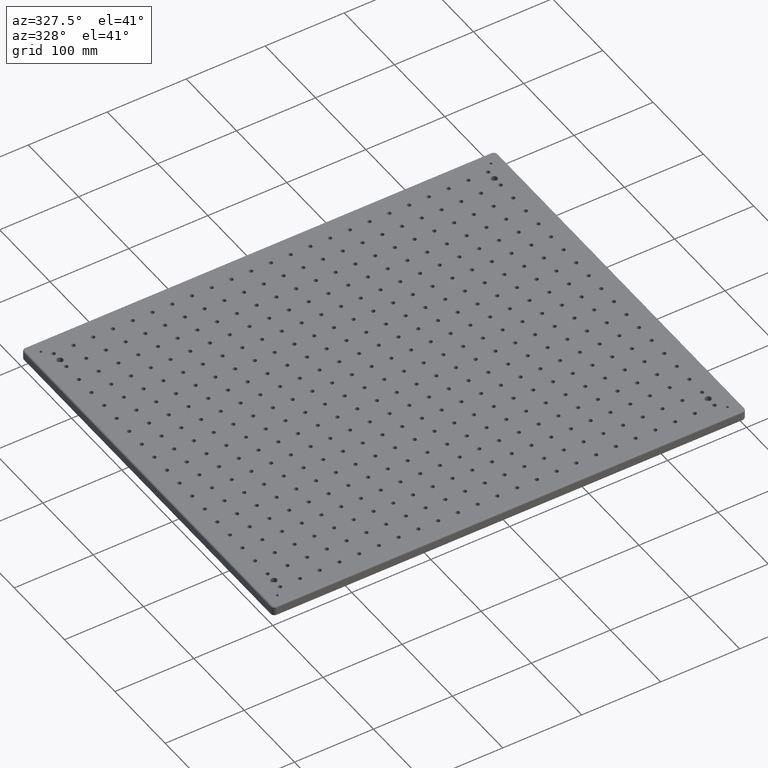
[diagram: clean part render]
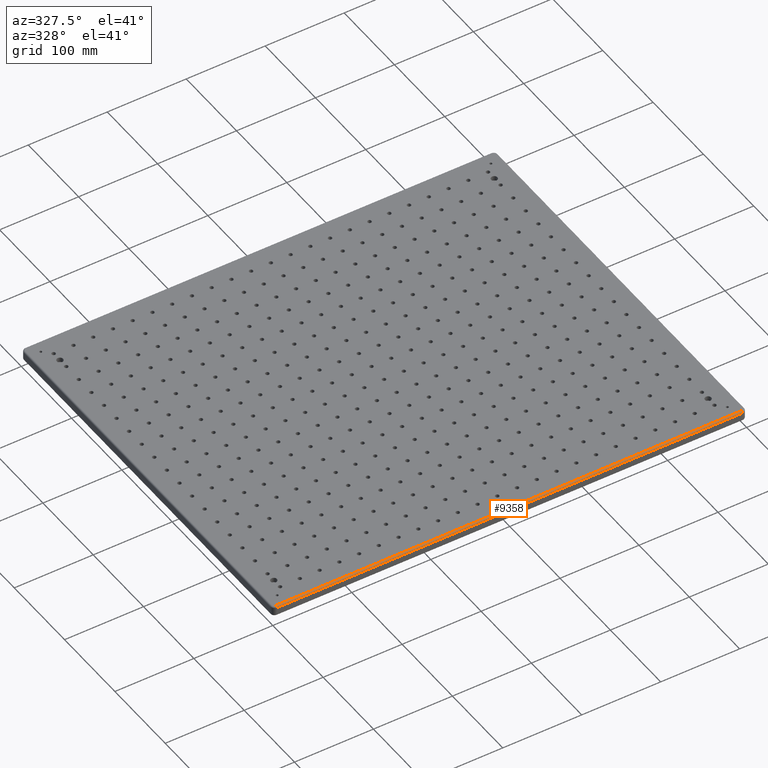
[diagram: same view with one face highlighted and labeled with its STEP entity id]
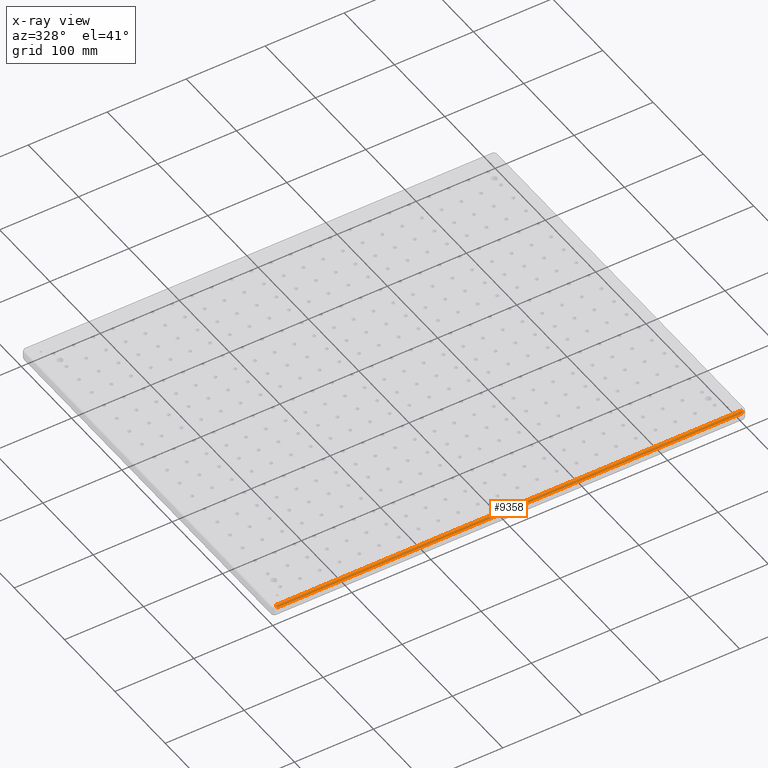
[diagram: x-ray of the same camera — body ghosted, the highlighted face saturated]
A machine part, auxiliary view. The second image highlights one B-rep face of the part: STEP entity #9358.
The next image is the same camera in x-ray: the body ghosted, the highlighted face saturated — about 0% of this face is hidden behind the body in this view.
In plain terms, the highlighted cylindrical surface (edge-blend (fillet) strip) has radius 2 mm, axis along (-1, 0, 0).
Its self-contained STEP definition (entity closure, byte-faithful):
#647 = DIRECTION ( 'NONE',  ( -1.000000000000000000, 0.0000000000000000000, 0.0000000000000000000 ) ) ;
#1611 = DIRECTION ( 'NONE',  ( -1.000000000000000000, -0.0000000000000000000, 0.0000000000000000000 ) ) ;
#3282 = DIRECTION ( 'NONE',  ( 0.0000000000000000000, 0.0000000000000000000, 1.000000000000000000 ) ) ;
#3392 = EDGE_CURVE ( 'NONE', #16228, #33607, #11680, .T. ) ;
#4882 = VERTEX_POINT ( 'NONE', #8307 ) ;
#5814 = LINE ( 'NONE', #30786, #15667 ) ;
#5933 = DIRECTION ( 'NONE',  ( 0.0000000000000000000, 0.0000000000000000000, -1.000000000000000000 ) ) ;
#7308 = CIRCLE ( 'NONE', #21788, 2.000000000000000000 ) ;
#7586 = VERTEX_POINT ( 'NONE', #7614 ) ;
#7614 = CARTESIAN_POINT ( 'NONE',  ( 4.999999999999999100, 0.0000000000000000000, -2.000000000000000000 ) ) ;
#8307 = CARTESIAN_POINT ( 'NONE',  ( 4.999999999999999100, 1.999999999999998200, 0.0000000000000000000 ) ) ;
#9165 = CARTESIAN_POINT ( 'NONE',  ( 594.9999999999998900, 2.000000000000001800, -2.000000000000000000 ) ) ;
#9358 = ADVANCED_FACE ( 'NONE', ( #27574 ), #21025, .T. ) ;
#10279 = ORIENTED_EDGE ( 'NONE', *, *, #33707, .F. ) ;
#11680 = CIRCLE ( 'NONE', #21659, 2.000000000000000000 ) ;
#11686 = DIRECTION ( 'NONE',  ( 1.000000000000000000, 0.0000000000000000000, -0.0000000000000000000 ) ) ;
#12106 = ORIENTED_EDGE ( 'NONE', *, *, #3392, .F. ) ;
#13928 = DIRECTION ( 'NONE',  ( 1.000000000000000000, 0.0000000000000000000, 0.0000000000000000000 ) ) ;
#15667 = VECTOR ( 'NONE', #1611, 1000.000000000000000 ) ;
#16228 = VERTEX_POINT ( 'NONE', #16323 ) ;
#16323 = CARTESIAN_POINT ( 'NONE',  ( 594.9999999999998900, 2.000000000000001800, 0.0000000000000000000 ) ) ;
#18485 = EDGE_LOOP ( 'NONE', ( #32427, #10279, #12106, #20124 ) ) ;
#19749 = EDGE_CURVE ( 'NONE', #4882, #16228, #23982, .T. ) ;
#20124 = ORIENTED_EDGE ( 'NONE', *, *, #19749, .F. ) ;
#21025 = CYLINDRICAL_SURFACE ( 'NONE', #31277, 2.000000000000000000 ) ;
#21659 = AXIS2_PLACEMENT_3D ( 'NONE', #9165, #11686, #27541 ) ;
#21788 = AXIS2_PLACEMENT_3D ( 'NONE', #25919, #32027, #5933 ) ;
#23176 = VECTOR ( 'NONE', #13928, 1000.000000000000000 ) ;
#23941 = EDGE_CURVE ( 'NONE', #4882, #7586, #7308, .T. ) ;
#23982 = LINE ( 'NONE', #27122, #23176 ) ;
#24333 = CARTESIAN_POINT ( 'NONE',  ( 0.0000000000000000000, 2.000000000000001800, -2.000000000000000000 ) ) ;
#25919 = CARTESIAN_POINT ( 'NONE',  ( 4.999999999999999100, 1.999999999999998200, -2.000000000000000000 ) ) ;
#27122 = CARTESIAN_POINT ( 'NONE',  ( 594.9999999999998900, 2.000000000000001800, 0.0000000000000000000 ) ) ;
#27466 = CARTESIAN_POINT ( 'NONE',  ( 594.9999999999998900, 0.0000000000000000000, -2.000000000000000000 ) ) ;
#27541 = DIRECTION ( 'NONE',  ( 0.0000000000000000000, 0.0000000000000000000, -1.000000000000000000 ) ) ;
#27574 = FACE_OUTER_BOUND ( 'NONE', #18485, .T. ) ;
#30786 = CARTESIAN_POINT ( 'NONE',  ( 4.999999999999999100, 0.0000000000000000000, -2.000000000000000000 ) ) ;
#31277 = AXIS2_PLACEMENT_3D ( 'NONE', #24333, #647, #3282 ) ;
#32027 = DIRECTION ( 'NONE',  ( 1.000000000000000000, 0.0000000000000000000, -0.0000000000000000000 ) ) ;
#32427 = ORIENTED_EDGE ( 'NONE', *, *, #23941, .T. ) ;
#33607 = VERTEX_POINT ( 'NONE', #27466 ) ;
#33707 = EDGE_CURVE ( 'NONE', #33607, #7586, #5814, .T. ) ;